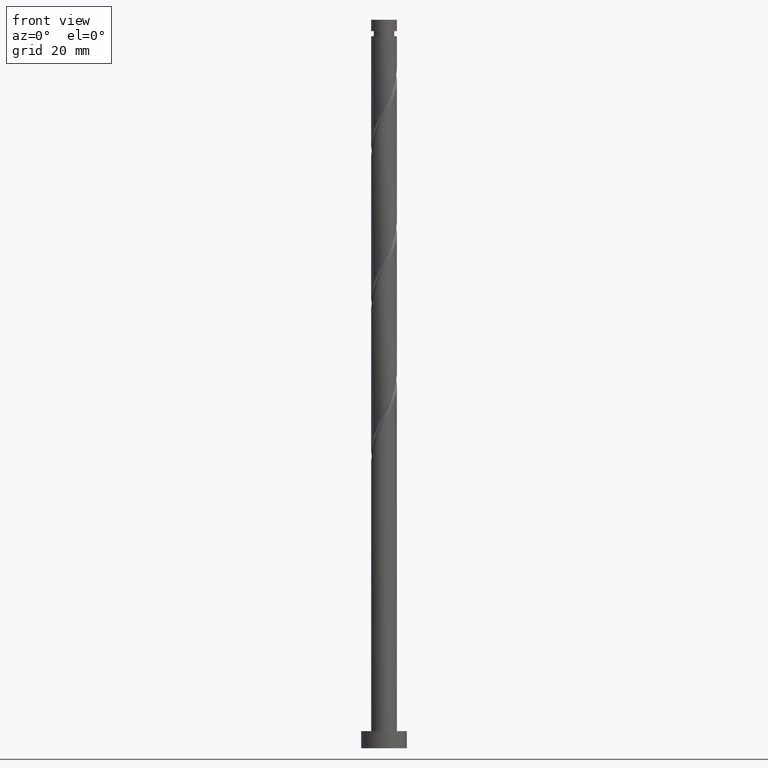
[diagram: clean part render]
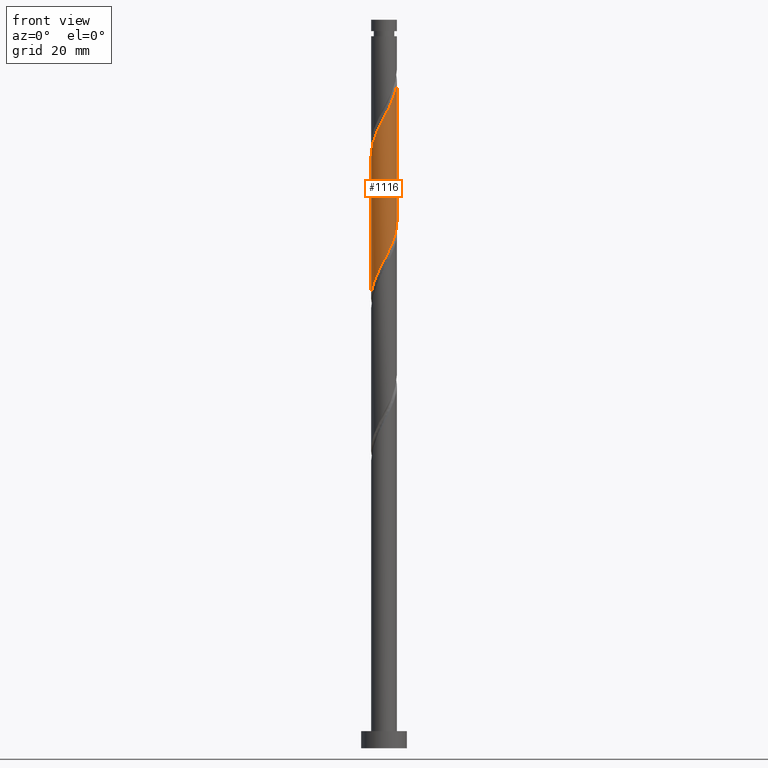
[diagram: same view with one face highlighted and labeled with its STEP entity id]
A machine part, front view. The second image highlights one B-rep face of the part: STEP entity #1116.
In plain terms, the highlighted cylindrical surface (edge-blend (fillet) strip) has radius 2.25 mm, axis along (-0, -0, -1).
Its self-contained STEP definition (entity closure, byte-faithful):
#48 = CARTESIAN_POINT ( 'NONE',  ( 1.800678831930457413, -1.387338727824647178, 114.1072136813793776 ) ) ;
#77 = CARTESIAN_POINT ( 'NONE',  ( -1.336880199978458528, -1.838451612741028196, 82.59206216622790464 ) ) ;
#96 = CARTESIAN_POINT ( 'NONE',  ( 0.1916127332030271024, -2.241826166426482914, 85.62236519653092159 ) ) ;
#99 = EDGE_CURVE ( 'NONE', #704, #326, #1401, .T. ) ;
#133 = CARTESIAN_POINT ( 'NONE',  ( -1.373217619952650903, -1.782350517785879163, 107.4405470147127346 ) ) ;
#141 = CARTESIAN_POINT ( 'NONE',  ( 1.050827842467677575, -1.989537847213453503, 112.2890318631975788 ) ) ;
#189 = CARTESIAN_POINT ( 'NONE',  ( -2.191738273361774958, -0.5087075201735710150, 79.56175913592484505 ) ) ;
#207 = ORIENTED_EDGE ( 'NONE', *, *, #99, .F. ) ;
#216 = CARTESIAN_POINT ( 'NONE',  ( 2.250000000000003553, 1.263851349445444954E-15, 116.8941228384421578 ) ) ;
#242 = CARTESIAN_POINT ( 'NONE',  ( 2.250000000000000000, -2.505267467835666472E-15, 91.92636513037726331 ) ) ;
#285 = CARTESIAN_POINT ( 'NONE',  ( -1.116954303204340304, -1.979789404466508973, 108.0466076207733295 ) ) ;
#293 = CARTESIAN_POINT ( 'NONE',  ( -2.250000000000003109, 1.742469611957329530E-15, 103.5607895051088150 ) ) ;
#303 = CARTESIAN_POINT ( 'NONE',  ( -0.8154464890247303810, -2.097032909502675402, 108.6526682268339528 ) ) ;
#317 = CARTESIAN_POINT ( 'NONE',  ( 2.227674514516370330, -0.4523486032461999651, 91.07691065107638906 ) ) ;
#324 = CARTESIAN_POINT ( 'NONE',  ( 2.246276943635557188, -0.1293827364500369226, 91.68297125713701234 ) ) ;
#326 = VERTEX_POINT ( 'NONE', #1549 ) ;
#332 = CARTESIAN_POINT ( 'NONE',  ( -0.1307132084390636162, -2.269375918314129326, 85.01630459047034094 ) ) ;
#340 = CARTESIAN_POINT ( 'NONE',  ( -1.568779515954457082, -1.612895170282835799, 81.98600156016729557 ) ) ;
#378 = CARTESIAN_POINT ( 'NONE',  ( 0.000000000000000000, 0.000000000000000000, 127.2999999999999972 ) ) ;
#392 = CARTESIAN_POINT ( 'NONE',  ( 2.250000000000003553, -0.2576900866165255377, 116.4081628854708299 ) ) ;
#393 = FACE_OUTER_BOUND ( 'NONE', #1032, .T. ) ;
#454 = VERTEX_POINT ( 'NONE', #216 ) ;
#467 = CARTESIAN_POINT ( 'NONE',  ( -1.050827842467676909, -1.989537847213448618, 83.19812277228851372 ) ) ;
#473 = CARTESIAN_POINT ( 'NONE',  ( -2.250000000000003109, 1.742469611957329530E-15, 103.5607895051088150 ) ) ;
#477 = CARTESIAN_POINT ( 'NONE',  ( 2.250000000000000000, -2.505267467835666078E-15, 91.92636513037726331 ) ) ;
#483 = CARTESIAN_POINT ( 'NONE',  ( 1.373217619952648016, -1.782350517785876720, 88.04660762077337210 ) ) ;
#496 = DIRECTION ( 'NONE',  ( -0.000000000000000000, -0.000000000000000000, -1.000000000000000000 ) ) ;
#517 = CARTESIAN_POINT ( 'NONE',  ( -0.5139386748451196807, -2.214276414538842275, 109.2587288328945476 ) ) ;
#525 = CARTESIAN_POINT ( 'NONE',  ( 0.7647754849568956237, -2.140624081685874369, 111.6829712571369697 ) ) ;
#533 = CARTESIAN_POINT ( 'NONE',  ( -2.250000000000003109, -0.06474493467860174822, 103.6828875098270402 ) ) ;
#595 = VERTEX_POINT ( 'NONE', #473 ) ;
#622 = LINE ( 'NONE', #1269, #1495 ) ;
#648 = CARTESIAN_POINT ( 'NONE',  ( 2.191738273361778955, -0.5087075201735723473, 115.9253954995612332 ) ) ;
#676 = CARTESIAN_POINT ( 'NONE',  ( 1.959638002949633195, -1.105585318912832626, 114.7132742874400009 ) ) ;
#704 = VERTEX_POINT ( 'NONE', #242 ) ;
#722 = VECTOR ( 'NONE', #1388, 1000.000000000000000 ) ;
#723 = ORIENTED_EDGE ( 'NONE', *, *, #1200, .F. ) ;
#740 = CARTESIAN_POINT ( 'NONE',  ( 2.249999999999999112, -0.06474493467860832630, 91.80426712565902392 ) ) ;
#794 = CARTESIAN_POINT ( 'NONE',  ( 0.4477443466979791342, -2.205000000000003624, 111.0769106510763606 ) ) ;
#811 = CARTESIAN_POINT ( 'NONE',  ( -2.227674514516373439, -0.4523486032461995210, 104.4102439844097177 ) ) ;
#825 = EDGE_CURVE ( 'NONE', #595, #454, #1392, .T. ) ;
#835 = CARTESIAN_POINT ( 'NONE',  ( 0.5139386748451190146, -2.214276414538837390, 86.22842580259153067 ) ) ;
#844 = CARTESIAN_POINT ( 'NONE',  ( 1.629480936700959504, -1.584911631105246910, 88.65266822683393855 ) ) ;
#859 = CARTESIAN_POINT ( 'NONE',  ( 1.116954303204337640, -1.979789404466506308, 87.44054701471273461 ) ) ;
#864 = CARTESIAN_POINT ( 'NONE',  ( 2.118835615059355248, -0.7569911732352238021, 90.47085004501577998 ) ) ;
#892 = DIRECTION ( 'NONE',  ( -0.000000000000000000, -0.000000000000000000, -1.000000000000000000 ) ) ;
#900 = LINE ( 'NONE', #1412, #722 ) ;
#908 = DIRECTION ( 'NONE',  ( -1.000000000000000000, 0.000000000000000000, 0.000000000000000000 ) ) ;
#909 = ORIENTED_EDGE ( 'NONE', *, *, #825, .F. ) ;
#922 = CARTESIAN_POINT ( 'NONE',  ( -2.246276943635560297, -0.1293827364500361732, 103.8041833783491086 ) ) ;
#933 = CARTESIAN_POINT ( 'NONE',  ( -2.118835615059359689, -0.7569911732352241351, 105.0163045904703125 ) ) ;
#940 = CARTESIAN_POINT ( 'NONE',  ( -1.819738826151654276, -1.323272687164749328, 106.2284258025915165 ) ) ;
#973 = CARTESIAN_POINT ( 'NONE',  ( 0.8154464890247281605, -2.097032909502672293, 86.83448640865212553 ) ) ;
#981 = CARTESIAN_POINT ( 'NONE',  ( 1.819738826151650724, -1.323272687164747330, 89.25872883289456183 ) ) ;
#990 = CARTESIAN_POINT ( 'NONE',  ( -1.800678831930455193, -1.387338727824644069, 81.37994095410668649 ) ) ;
#1025 = EDGE_CURVE ( 'NONE', #595, #326, #900, .T. ) ;
#1032 = EDGE_LOOP ( 'NONE', ( #723, #909, #1209, #207 ) ) ;
#1034 = CARTESIAN_POINT ( 'NONE',  ( -0.1916127332030285180, -2.241826166426486910, 109.8647894389551567 ) ) ;
#1050 = CARTESIAN_POINT ( 'NONE',  ( 2.118597173968808978, -0.8238319100010169649, 115.3193348935005957 ) ) ;
#1116 = ADVANCED_FACE ( 'NONE', ( #393 ), #1277, .T. ) ;
#1161 = CARTESIAN_POINT ( 'NONE',  ( 2.250000000000003109, 1.263851349445444954E-15, 116.8941228384421578 ) ) ;
#1167 = CARTESIAN_POINT ( 'NONE',  ( 1.568779515954458859, -1.612895170282838686, 113.5011530753188111 ) ) ;
#1192 = CARTESIAN_POINT ( 'NONE',  ( 1.336880199978460526, -1.838451612741030861, 112.8950924692581594 ) ) ;
#1200 = EDGE_CURVE ( 'NONE', #454, #704, #622, .T. ) ;
#1209 = ORIENTED_EDGE ( 'NONE', *, *, #1025, .T. ) ;
#1216 = CARTESIAN_POINT ( 'NONE',  ( -2.249999999999999556, 8.286078669737070471E-15, 78.59303179704392051 ) ) ;
#1234 = CARTESIAN_POINT ( 'NONE',  ( -0.4477443466979794118, -2.204999999999999627, 84.41024398440973187 ) ) ;
#1269 = CARTESIAN_POINT ( 'NONE',  ( 2.250000000000000000, 2.755455298081544285E-16, 127.2999999999999972 ) ) ;
#1274 = AXIS2_PLACEMENT_3D ( 'NONE', #378, #496, #908 ) ;
#1277 = CYLINDRICAL_SURFACE ( 'NONE', #1274, 2.250000000000000000 ) ;
#1319 = CARTESIAN_POINT ( 'NONE',  ( -1.629480936700961502, -1.584911631105249352, 106.8344864086521113 ) ) ;
#1351 = CARTESIAN_POINT ( 'NONE',  ( 2.009996715602341499, -1.061633743224247750, 89.86478943895518512 ) ) ;
#1366 = CARTESIAN_POINT ( 'NONE',  ( -1.959638002949629865, -1.105585318912829518, 80.77388034804610584 ) ) ;
#1372 = CARTESIAN_POINT ( 'NONE',  ( -0.7647754849568952906, -2.140624081685869928, 83.80418337834912279 ) ) ;
#1388 = DIRECTION ( 'NONE',  ( -0.000000000000000000, -0.000000000000000000, -1.000000000000000000 ) ) ;
#1392 =( BOUNDED_CURVE ( )  B_SPLINE_CURVE ( 2, ( #293, #533, #922, #811, #933, #1425, #940, #1319, #133, #285, #303, #517, #1034, #1454, #794, #525, #141, #1192, #1167, #48, #676, #1050, #648, #392, #1161 ),
 .UNSPECIFIED., .F., .T. ) 
 B_SPLINE_CURVE_WITH_KNOTS ( ( 3, 2, 2, 2, 2, 2, 2, 2, 2, 2, 2, 2, 3 ),
 ( 0.5545252162417514397, 0.5568181818181818787, 0.5681818181818181213, 0.5795454545454545858, 0.5909090909090908283, 0.6022727272727272929, 0.6136363636363636465, 0.6250000000000000000, 0.6363636363636363535, 0.6477272727272727071, 0.6590909090909091717, 0.6704545454545454142, 0.6795252162417514397 ),
 .UNSPECIFIED. ) 
 CURVE ( )  GEOMETRIC_REPRESENTATION_ITEM ( )  RATIONAL_B_SPLINE_CURVE ( ( 0.9061101570135616790, 0.9072237824201438983, 0.9090909090909213841, 0.8998376744372236224, 0.9090909090909213841, 0.8998376744372236224, 0.9090909090909213841, 0.8998376744372236224, 0.9090909090909213841, 0.8998376744372236224, 0.9090909090909213841, 0.8998376744372236224, 0.9090909090909213841, 0.8998376744372236224, 0.9090909090909213841, 0.8998376744372236224, 0.9090909090909213841, 0.8998376744372236224, 0.9090909090909213841, 0.8998376744372236224, 0.9090909090909213841, 0.8998376744372236224, 0.9090909090909213841, 0.9017048011080011083, 0.9061101570135616790 ) ) 
 REPRESENTATION_ITEM ( '' )  );
#1401 =( BOUNDED_CURVE ( )  B_SPLINE_CURVE ( 2, ( #477, #740, #324, #317, #864, #1351, #981, #844, #483, #859, #973, #835, #96, #332, #1234, #1372, #467, #77, #340, #990, #1366, #1503, #189, #1632, #1216 ),
 .UNSPECIFIED., .F., .T. ) 
 B_SPLINE_CURVE_WITH_KNOTS ( ( 3, 2, 2, 2, 2, 2, 2, 2, 2, 2, 2, 2, 3 ),
 ( 0.5545252162417515507, 0.5568181818181817677, 0.5681818181818182323, 0.5795454545454545858, 0.5909090909090909394, 0.6022727272727272929, 0.6136363636363636465, 0.6250000000000000000, 0.6363636363636363535, 0.6477272727272727071, 0.6590909090909090606, 0.6704545454545454142, 0.6795252162417514397 ),
 .UNSPECIFIED. ) 
 CURVE ( )  GEOMETRIC_REPRESENTATION_ITEM ( )  RATIONAL_B_SPLINE_CURVE ( ( 0.9061101570135544625, 0.9072237824201365708, 0.9090909090909138346, 0.8998376744372161840, 0.9090909090909138346, 0.8998376744372161840, 0.9090909090909138346, 0.8998376744372161840, 0.9090909090909138346, 0.8998376744372161840, 0.9090909090909138346, 0.8998376744372161840, 0.9090909090909138346, 0.8998376744372161840, 0.9090909090909138346, 0.8998376744372161840, 0.9090909090909138346, 0.8998376744372161840, 0.9090909090909138346, 0.8998376744372161840, 0.9090909090909138346, 0.8998376744372161840, 0.9090909090909138346, 0.9017048011079935588, 0.9061101570135543515 ) ) 
 REPRESENTATION_ITEM ( '' )  );
#1412 = CARTESIAN_POINT ( 'NONE',  ( -2.250000000000000000, 0.000000000000000000, 127.2999999999999972 ) ) ;
#1425 = CARTESIAN_POINT ( 'NONE',  ( -2.009996715602345052, -1.061633743224249304, 105.6223651965309216 ) ) ;
#1454 = CARTESIAN_POINT ( 'NONE',  ( 0.1307132084390627835, -2.269375918314132434, 110.4708500450157658 ) ) ;
#1495 = VECTOR ( 'NONE', #892, 1000.000000000000000 ) ;
#1503 = CARTESIAN_POINT ( 'NONE',  ( -2.118597173968805425, -0.8238319100010157436, 80.16781974198548255 ) ) ;
#1549 = CARTESIAN_POINT ( 'NONE',  ( -2.249999999999999556, 8.286078669737068893E-15, 78.59303179704392051 ) ) ;
#1632 = CARTESIAN_POINT ( 'NONE',  ( -2.250000000000000444, -0.2576900866165222070, 79.07899175001523417 ) ) ;